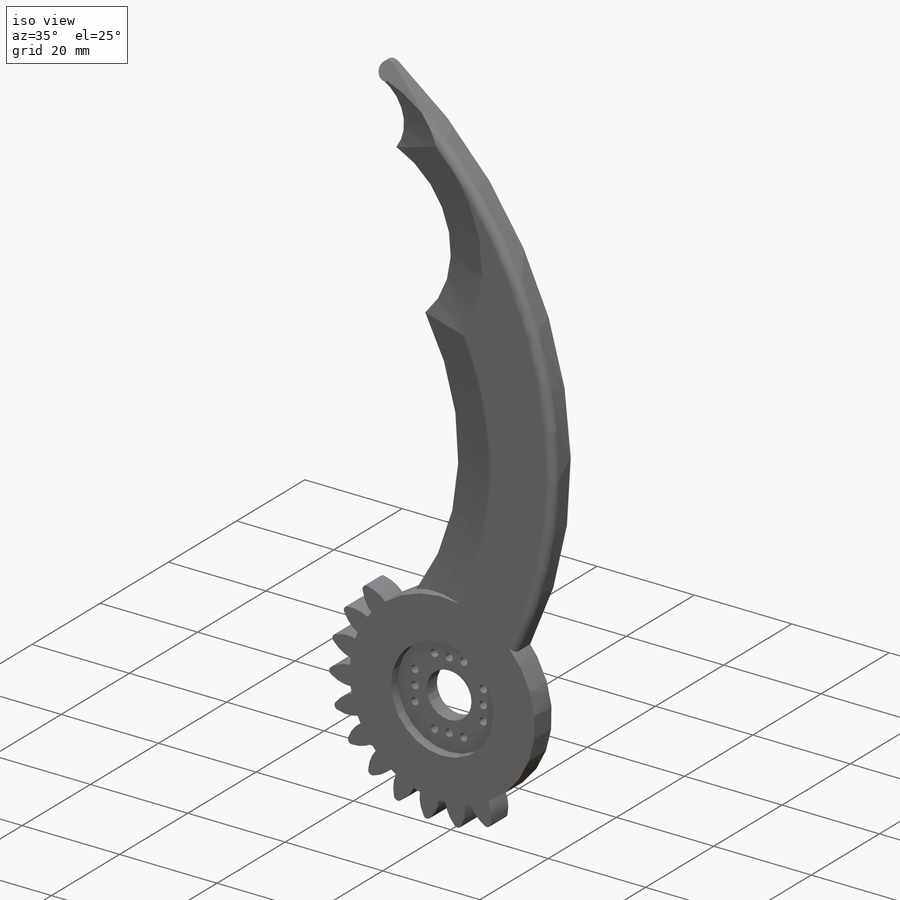
[diagram: iso view]
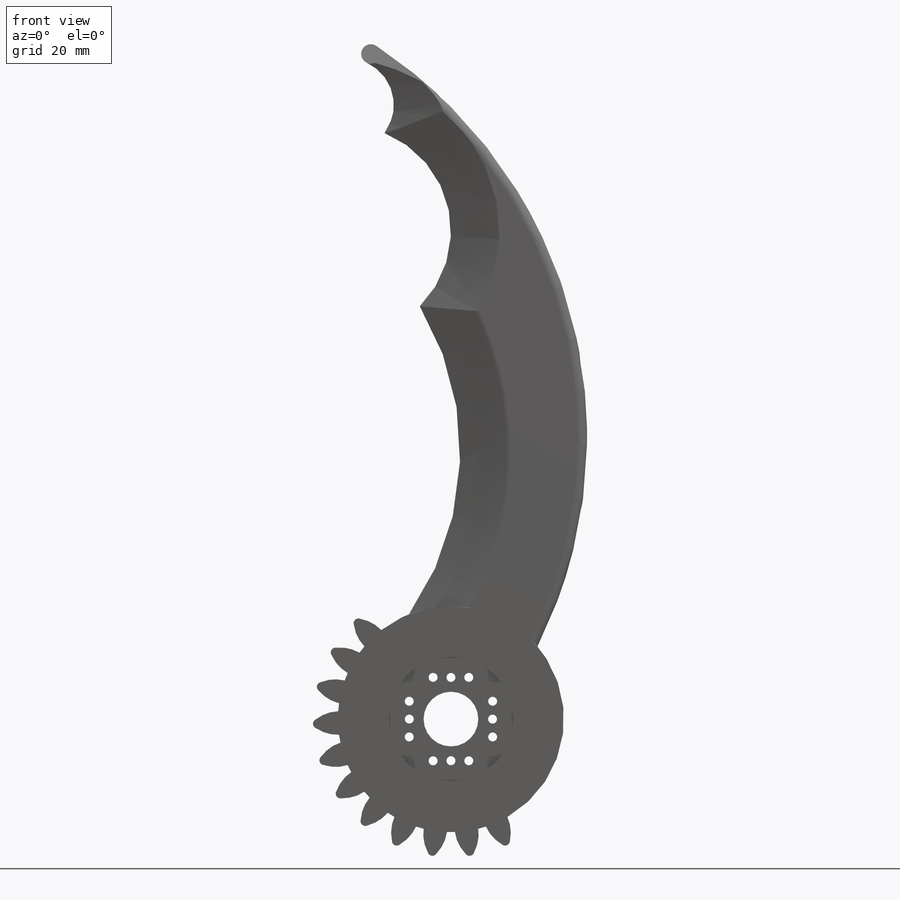
[diagram: front view]
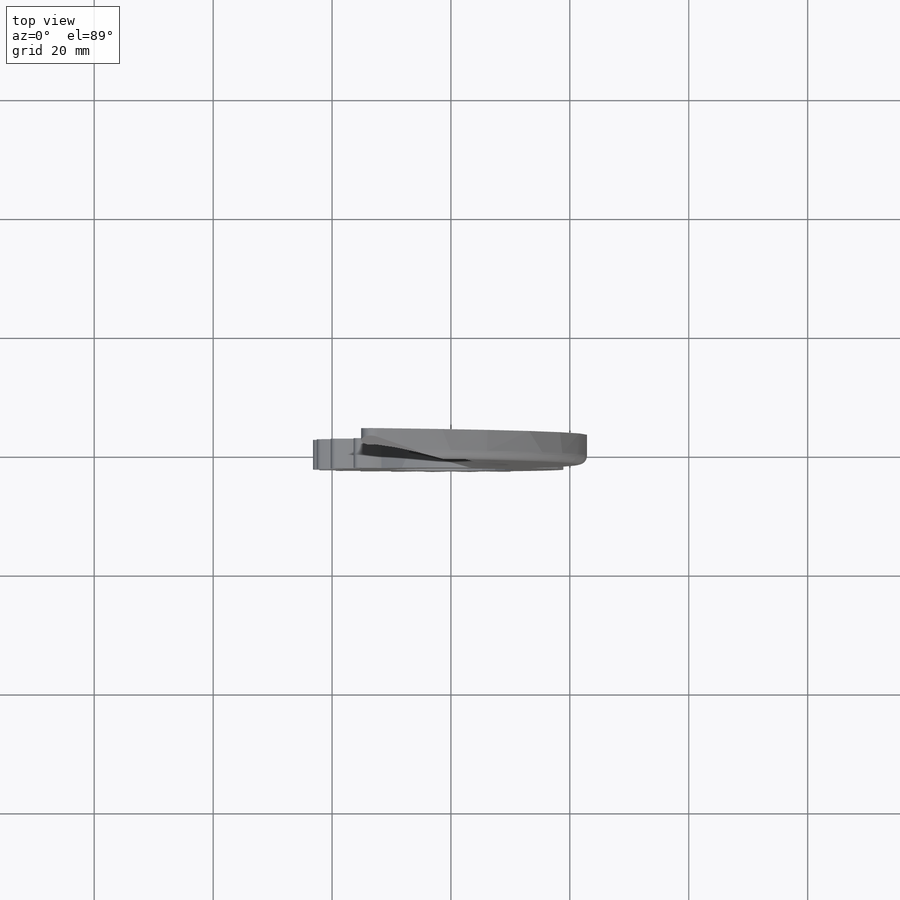
[diagram: top view]
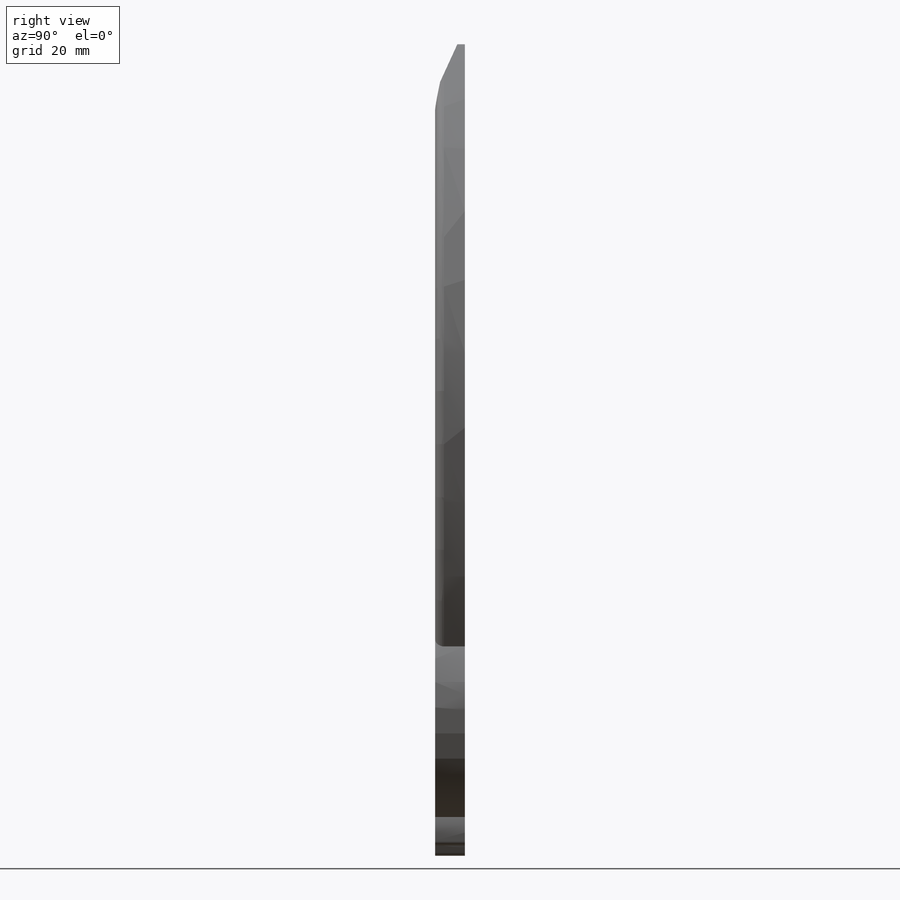
[diagram: right view]
SOLIDWORKS PART (.sldprt)
format: sldprt  version: not decoded by parser v0  size: 422,400 bytes
history: native  units: mm
features: sketch x4, plane x3, cut_extrude x3, chamfer x2, fillet x2, material x1, extrude x1 (+10 scaffold rows collapsed)
feature tree (26):
  scaffold x10  (default folders/planes/origin — collapsed)
  material  "Material <sin especificar>"
  plane  "Alzado"
  plane  "Planta"
  plane  "Vista lateral"
  sketch  "Croquis1"  dims[c1.D1=~25.093655mm c1.D4=4.35mm c2.D1=~26.894403mm c3.D1=8.0deg c3.D2=~26.894403mm c4.D2=8.0deg c4.D3=~27.073332mm c4.D1=~0.716592mm c5.D3=~0.484392mm c5.D4=0.48mm c5.D5=0.72mm c5.D2=102.0mm c5.D1=10.0 c6.D3=3.0]
  extrude  "Base Pinza Dcha"  Depth=5mm
  chamfer  "Filo Pinza Dcha frente"  Distance=2.5mm Angle=73deg
  chamfer  "Filo Pinza Dcha trasera"  Distance=2.5mm Angle=40deg
  fillet  "Redondeo pinza"  Radius=1.5mm
  sketch  "Croquis2"
  cut_extrude  "Filo punta de la pinza"  Depth=16mm
  fillet  "Redondeo"  Radius=2mm
  sketch  "Croquis3"  dims[D1=10.25mm]
  cut_extrude  "Hueco Horn circular"  Depth=2mm
  sketch  "Croquis4"  dims[c1.D1=3.0mm c1.D2=3.0mm c2.D1=4.0]
  cut_extrude  "Taladros Horn"  [1 undecoded]
decode coverage: 10 of 12 modeling features carry decoded parameters
note: ~ marks probable driven/reference dimensions
note: 1 parameter value undecoded
note: suppression state not decoded; provenance and decode notes live in map.json
